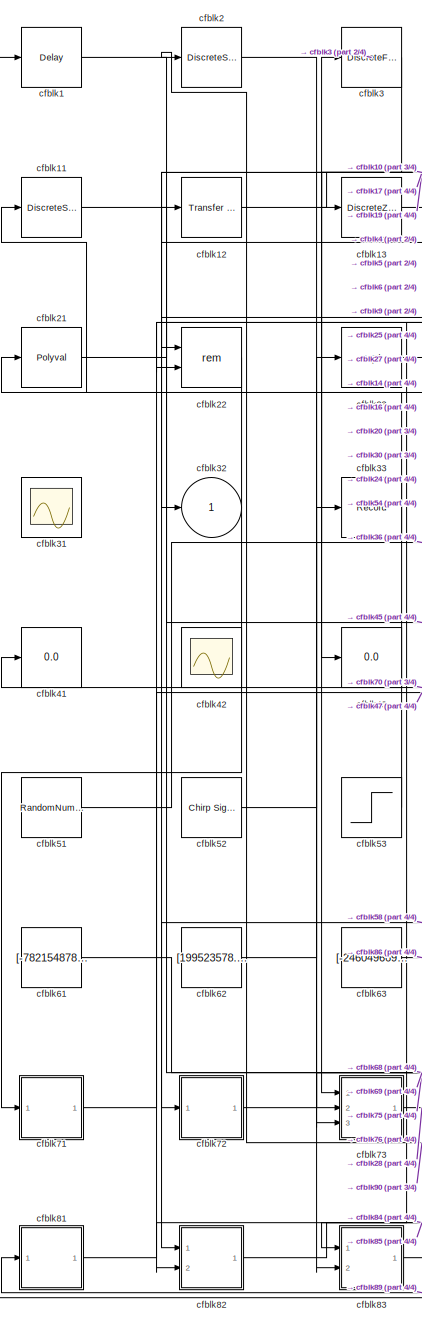
[diagram: root canvas - part 1/4, left side, full height]
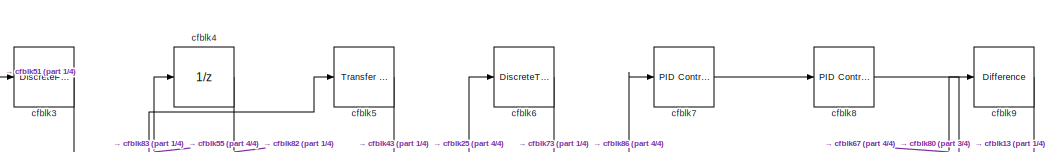
[diagram: root canvas - part 2/4, top center region]
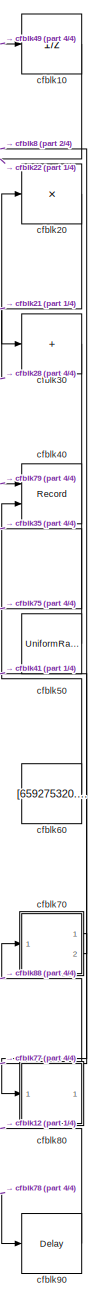
[diagram: root canvas - part 3/4, right side, full height]
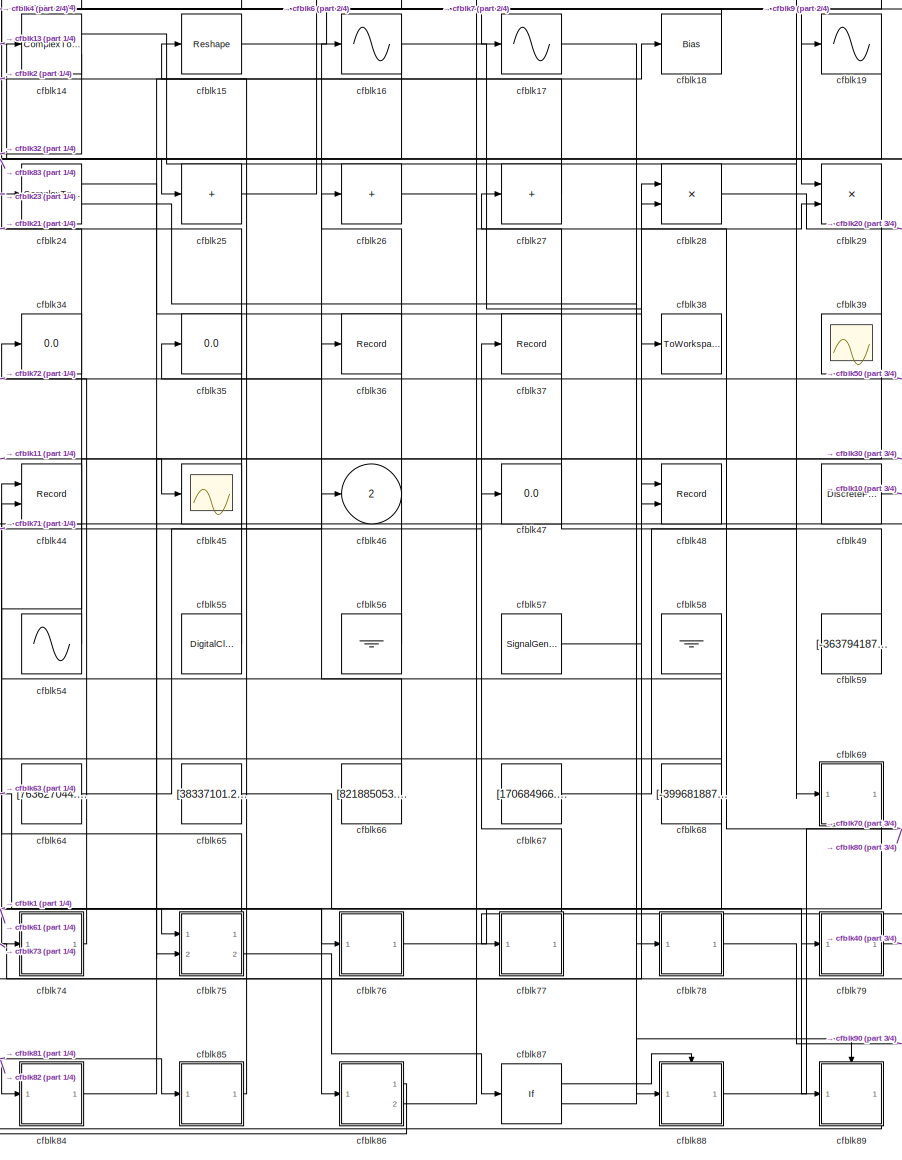
[diagram: root canvas - part 4/4, center side, full height]
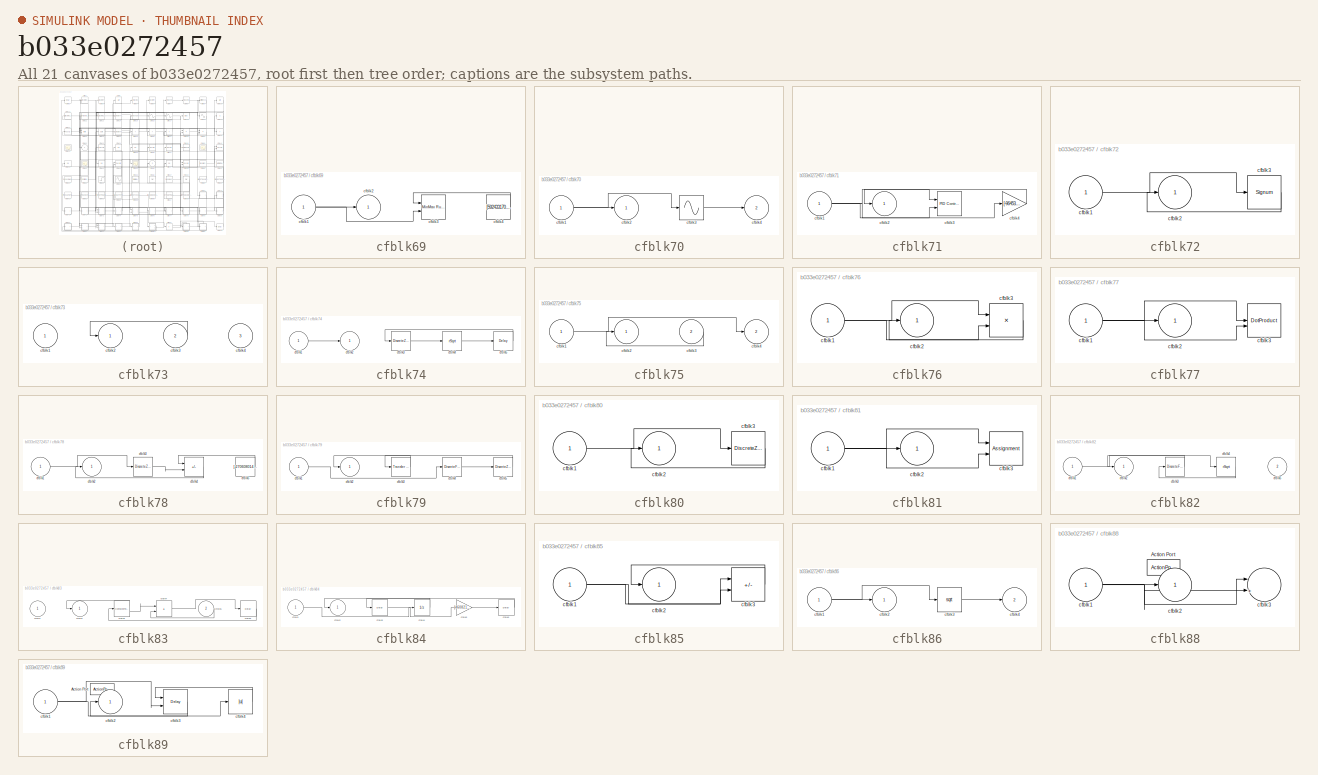
[diagram: thumbnail index - all 21 canvases of the model, root first then tree order]
MODEL slx_b033e0272457
KIND model
CONFIG AbsTol = auto
CONFIG EnableMultiTasking = off
CONFIG FixedStep = auto
CONFIG MaxStep = auto
CONFIG MinStep = auto
CONFIG RelTol = 1e-3
CONFIG SampleTimeConstraint = Unconstrained
CONFIG SolverName = VariableStepAuto
CONFIG StartTime = 0.0
CONFIG StopTime = 10.0
BLOCK [Delay] cfblk1
  InputPortMap = u0
  Ports = [1, 1]
  SampleTime = 1
BLOCK [UnitDelay] cfblk10
  HasFrameUpgradeWarning = on
BLOCK [DiscreteStateSpace] cfblk11
BLOCK [Reference] cfblk12  REF=simulink/Discrete/Transfer Fcn
First Order
  Ports = [1, 1]
  SourceBlock = simulink/Discrete/Transfer Fcn\nFirst Order
  SourceProductBaseCode = SL
  SourceType = First Order Transfer Fcn
BLOCK [DiscreteZeroPole] cfblk13
  Gain = 1
  Poles = [0 0.5]
BLOCK [ComplexToRealImag] cfblk14
  Ports = [1, 2]
BLOCK [Reshape] cfblk15
  Ports = [1, 1]
BLOCK [Sin] cfblk16
  Ports = [1, 1]
  SampleTime = 0
  TimeSource = Use external signal
BLOCK [Sin] cfblk17
  Ports = [1, 1]
  SampleTime = 0
  TimeSource = Use external signal
BLOCK [Bias] cfblk18
  Bias = [845461795.015227]
  SaturateOnIntegerOverflow = off
BLOCK [Sin] cfblk19
  Ports = [1, 1]
  SampleTime = 0
  TimeSource = Use external signal
BLOCK [DiscreteStateSpace] cfblk2
BLOCK [Product] cfblk20
  Inputs = *
  Ports = [1, 1]
BLOCK [Polyval] cfblk21
  Coefs = [ +2.081618890e-019, -1.441693666e-014, +4.719686976e-010, -8.536869453e-006, +1.621573104e-001, -8.087801117e+001 ]
BLOCK [Math] cfblk22
  Operator = rem
  Ports = [2, 1]
BLOCK [Sqrt] cfblk23
BLOCK [ComplexToRealImag] cfblk24
  Ports = [1, 2]
BLOCK [Sum] cfblk25
  IconShape = rectangular
  Inputs = +
  Ports = [1, 1]
BLOCK [Sum] cfblk26
  IconShape = rectangular
  Inputs = +
  Ports = [1, 1]
BLOCK [Sum] cfblk27
  IconShape = rectangular
  Inputs = +
  Ports = [1, 1]
BLOCK [Product] cfblk28
  Inputs = **
  Ports = [2, 1]
BLOCK [Product] cfblk29
  Ports = [2, 1]
BLOCK [DiscreteFilter] cfblk3
  InputPortMap = u0
  Ports = [1, 1]
  SampleTime = 1
BLOCK [Sum] cfblk30
  IconShape = rectangular
  Inputs = +
  Ports = [1, 1]
BLOCK [Scope] cfblk31
  Floating = on
  NumInputPorts = 1
  Ports = []
BLOCK [Outport] cfblk32
BLOCK [Record] cfblk33
  FileSettingsInternal = {"entries":[{"content":{"excelSettings":{"content":{},"type":"Streamout.ExcelSettings"}},"type":"Streamout.FileSettingStorage","uuid":"4614327e-6d68-453b-8b22-e360a787c784"}],"packageUris":["http://schema.mathworks.com/mf0/streamout_blocks/R2020a"],"version":"1.0"}
  Ports = [1]
  SignalsInternal = {"entries":[{"content":{"signals":[{"content":{"blockPath":["sampleModel204/cfblk33"],"channel":[],"dimensions":[1],"domain":"sampleModel204/cfblk33","lineColor":"#d95319","plots":[1],"port":1,"sid":[""],"signalID":7830,"signalName":"cfblk62"},"type":"RecordBlkView.Signal","uuid":"73eefb64-9ff5-4529-8fa5-b9cf3d236068"}]},"type":"RecordBlkView.InputSignals","uuid":"d034e69d-cb16-4f24-b8c5-1be1b0cbd...<+97ch>
  VisualizationBindings = {"sparklinesplugin":{"info":[{"bindingParametersList":[],"subplotID":1}]}}
BLOCK [Display] cfblk34
  Decimation = 1
  Ports = [1]
BLOCK [Display] cfblk35
  Decimation = 1
  Ports = [1]
BLOCK [Record] cfblk36
  FileSettingsInternal = {"entries":[{"content":{"excelSettings":{"content":{},"type":"Streamout.ExcelSettings"}},"type":"Streamout.FileSettingStorage","uuid":"273fffbf-c1de-4c74-a5f9-b15d57392e10"}],"packageUris":["http://schema.mathworks.com/mf0/streamout_blocks/R2020a"],"version":"1.0"}
  Ports = [1]
  SignalsInternal = {"entries":[{"content":{"signals":[{"content":{"blockPath":["sampleModel204/cfblk36"],"channel":[],"dimensions":[1],"domain":"sampleModel204/cfblk36","lineColor":"#77ac30","plots":[1],"port":1,"sid":[""],"signalID":7842,"signalName":"cfblk72"},"type":"RecordBlkView.Signal","uuid":"099157b1-13d5-4ecc-8a56-fe1fbab54c4c"}]},"type":"RecordBlkView.InputSignals","uuid":"1c521255-1461-4086-a910-e84576cd6...<+97ch>
  VisualizationBindings = {"sparklinesplugin":{"info":[{"bindingParametersList":[],"subplotID":1}]}}
BLOCK [Record] cfblk37
  FileSettingsInternal = {"entries":[{"content":{"excelSettings":{"content":{},"type":"Streamout.ExcelSettings"}},"type":"Streamout.FileSettingStorage","uuid":"e99169b0-8bbd-4adc-bc89-6a821c2eb76f"}],"packageUris":["http://schema.mathworks.com/mf0/streamout_blocks/R2020a"],"version":"1.0"}
  Ports = [1]
  SignalsInternal = {"entries":[{"content":{"signals":[{"content":{"blockPath":["sampleModel204/cfblk37"],"channel":[],"dimensions":[1],"domain":"sampleModel204/cfblk37","lineColor":"#b746ff","plots":[1],"port":1,"sid":[""],"signalID":7806,"signalName":"cfblk77"},"type":"RecordBlkView.Signal","uuid":"b58d8220-4f6b-40a0-8985-ec7f20b7d218"}]},"type":"RecordBlkView.InputSignals","uuid":"e264d71b-3544-4864-a4c8-23cd5ab33...<+97ch>
  VisualizationBindings = {"sparklinesplugin":{"info":[{"bindingParametersList":[],"subplotID":1}]}}
BLOCK [ToWorkspace] cfblk38
  FixptAsFi = on
  MaxDataPoints = inf
  Ports = [1]
  SampleTime = -1
  SaveFormat = Timeseries
  VariableName = zlrueyg
BLOCK [Scope] cfblk39
  Floating = on
  NumInputPorts = 1
  Ports = []
BLOCK [UnitDelay] cfblk4
  HasFrameUpgradeWarning = on
BLOCK [Record] cfblk40
  CompatibilityTag = XY
  FileSettingsInternal = {"entries":[{"content":{"excelSettings":{"content":{},"type":"Streamout.ExcelSettings"}},"type":"Streamout.FileSettingStorage","uuid":"cbd2d082-06ee-47d5-bd8d-4f1c9f04a451"}],"packageUris":["http://schema.mathworks.com/mf0/streamout_blocks/R2020a"],"version":"1.0"}
  Layout = [1 1]
  Ports = [2]
  SignalsInternal = {"entries":[{"content":{"signals":[{"content":{"blockPath":["sampleModel204/cfblk40"],"channel":[],"dimensions":[1],"domain":"sampleModel204/cfblk40","lineColor":"#a2142f","plots":[1],"port":1,"sid":[""],"signalID":7834,"signalName":"cfblk79"},"type":"RecordBlkView.Signal","uuid":"3b1cfed9-1420-47cd-881b-1f195950825b"},{"content":{"blockPath":["sampleModel204/cfblk40"],"channel":[],"dimensions":[1...<+383ch>
  VisualizationBindings = {"xyplotplugin":{"info":[{"series":[{"bindingParametersList":[{"parameter":"X-Axis","signalID":7834,"signalName":"cfblk79"},{"parameter":"Y-Axis","signalID":7838,"signalName":"cfblk60"}],"seriesID":54602}],"subplotID":1}]}}
BLOCK [Display] cfblk41
  Decimation = 1
  Ports = [1]
BLOCK [Scope] cfblk42
  Floating = on
  NumInputPorts = 1
  Ports = []
BLOCK [Display] cfblk43
  Decimation = 1
  Ports = [1]
BLOCK [Record] cfblk44
  CompatibilityTag = XY
  FileSettingsInternal = {"entries":[{"content":{"excelSettings":{"content":{},"type":"Streamout.ExcelSettings"}},"type":"Streamout.FileSettingStorage","uuid":"00e44288-5fa3-4b54-8d93-aeff6a4aa51a"}],"packageUris":["http://schema.mathworks.com/mf0/streamout_blocks/R2020a"],"version":"1.0"}
  Layout = [1 1]
  Ports = [2]
  SignalsInternal = {"entries":[{"content":{"signals":[{"content":{"blockPath":["sampleModel204/cfblk44"],"channel":[],"dimensions":[1],"domain":"sampleModel204/cfblk44","lineColor":"#a2142f","plots":[1],"port":1,"sid":[""],"signalID":7810,"signalName":"cfblk75:1"},"type":"RecordBlkView.Signal","uuid":"d7162e4a-4f86-4723-8ae1-6ffcbfc36c1b"},{"content":{"blockPath":["sampleModel204/cfblk44"],"channel":[],"dimensions":...<+385ch>
  VisualizationBindings = {"xyplotplugin":{"info":[{"series":[{"bindingParametersList":[{"parameter":"X-Axis","signalID":7810,"signalName":"cfblk75:1"},{"parameter":"Y-Axis","signalID":7814,"signalName":"cfblk68"}],"seriesID":60804}],"subplotID":1}]}}
BLOCK [Scope] cfblk45
  Floating = off
  NumInputPorts = 1
  Ports = [1]
BLOCK [Outport] cfblk46
  Port = 2
BLOCK [Display] cfblk47
  Decimation = 1
  Ports = [1]
BLOCK [Record] cfblk48
  CompatibilityTag = XY
  FileSettingsInternal = {"entries":[{"content":{"excelSettings":{"content":{},"type":"Streamout.ExcelSettings"}},"type":"Streamout.FileSettingStorage","uuid":"2edb4c00-d95e-48a7-8cef-8a4f1b586e17"}],"packageUris":["http://schema.mathworks.com/mf0/streamout_blocks/R2020a"],"version":"1.0"}
  Layout = [1 1]
  Ports = [2]
  SignalsInternal = {"entries":[{"content":{"signals":[{"content":{"blockPath":["sampleModel204/cfblk48"],"channel":[],"dimensions":[1],"domain":"sampleModel204/cfblk48","lineColor":"#a2142f","plots":[1],"port":1,"sid":[""],"signalID":7818,"signalName":"cfblk16"},"type":"RecordBlkView.Signal","uuid":"7f00db83-bb6a-45eb-ae87-3391caf7e80c"},{"content":{"blockPath":["sampleModel204/cfblk48"],"channel":[],"dimensions":[1...<+383ch>
  VisualizationBindings = {"xyplotplugin":{"info":[{"series":[{"bindingParametersList":[{"parameter":"X-Axis","signalID":7818,"signalName":"cfblk16"},{"parameter":"Y-Axis","signalID":7822,"signalName":"cfblk57"}],"seriesID":5655}],"subplotID":1}]}}
BLOCK [DiscretePulseGenerator] cfblk49
  Amplitude = [-519499388.720965]
  Period = [94571993.588733]
  PhaseDelay = [2.000000]
  Ports = [0, 1]
  PulseType = Time based
  PulseWidth = 5
BLOCK [Reference] cfblk5  REF=simulink/Discrete/Transfer Fcn
Lead or Lag
  Ports = [1, 1]
  SourceBlock = simulink/Discrete/Transfer Fcn\nLead or Lag
  SourceProductBaseCode = SL
  SourceType = Lead or Lag Compensator
BLOCK [UniformRandomNumber] cfblk50
  Maximum = [3900943533.196655]
  Minimum = [-8292247236.991416]
  SampleTime = 0.1
  Seed = [55618585.000000]
BLOCK [RandomNumber] cfblk51
  Mean = [79889.380075]
  SampleTime = 0.1
  Seed = [592125441.000000]
  Variance = [28207.649343]
BLOCK [Reference] cfblk52  REF=simulink/Sources/Chirp Signal
  Ports = [0, 1]
  SourceBlock = simulink/Sources/Chirp Signal
  SourceProductBaseCode = SL
  SourceType = chirp
BLOCK [Step] cfblk53
  After = [622894084.092801]
  Before = [565151935.973644]
  SampleTime = 0
  Time = [4.000000]
BLOCK [Sin] cfblk54
  Amplitude = [555177665.867173]
  Bias = [-790741266.615498]
  Ports = [0, 1]
  SampleTime = 0
BLOCK [DigitalClock] cfblk55
BLOCK [Ground] cfblk56
BLOCK [SignalGenerator] cfblk57
  Amplitude = [824030716.043719]
  Ports = [0, 1]
BLOCK [Ground] cfblk58
BLOCK [Constant] cfblk59
  SampleTime = 1
  Value = [-363794187.541583]
BLOCK [DiscreteTransferFcn] cfblk6
  InputPortMap = u0
  Ports = [1, 1]
  SampleTime = 1
BLOCK [Constant] cfblk60
  SampleTime = 1
  Value = [659275320.174151]
BLOCK [Constant] cfblk61
  SampleTime = 1
  Value = [-782154878.716757]
BLOCK [Constant] cfblk62
  SampleTime = 1
  Value = [199523578.615818]
BLOCK [Constant] cfblk63
  SampleTime = 1
  Value = [-246049669.144012]
BLOCK [Constant] cfblk64
  SampleTime = 1
  Value = [763627044.213252]
BLOCK [Constant] cfblk65
  SampleTime = 1
  Value = [38337101.296954]
BLOCK [Constant] cfblk66
  SampleTime = 1
  Value = [821885053.109942]
BLOCK [Constant] cfblk67
  SampleTime = 1
  Value = [170684966.366622]
BLOCK [Constant] cfblk68
  SampleTime = 1
  Value = [-399681887.981748]
BLOCK [SubSystem] cfblk69
  Ports = [1, 1]
  RequestExecContextInheritance = off
BLOCK [Inport] cfblk69/cfblk1
BLOCK [Outport] cfblk69/cfblk2
BLOCK [Reference] cfblk69/cfblk3  REF=simulink/Math
Operations/MinMax
Running
Resettable
  Ports = [2, 1]
  SourceBlock = simulink/Math\nOperations/MinMax\nRunning\nResettable
  SourceProductBaseCode = SL
  SourceType = MinMax Running Resettable
BLOCK [Constant] cfblk69/cfblk4
  SampleTime = 1
  Value = [592433170.448358]
BLOCK [Reference] cfblk7  REF=slpidlib/PID Controller
  Ports = [1, 1]
  SourceBlock = slpidlib/PID Controller
  SourceProductBaseCode = SL
  SourceType = PID 1dof
BLOCK [SubSystem] cfblk70
  Ports = [1, 2]
  RequestExecContextInheritance = off
BLOCK [Inport] cfblk70/cfblk1
BLOCK [Outport] cfblk70/cfblk2
BLOCK [Sin] cfblk70/cfblk3
  Ports = [1, 1]
  SampleTime = 0
  TimeSource = Use external signal
BLOCK [Outport] cfblk70/cfblk4
  Port = 2
BLOCK [SubSystem] cfblk71
  Ports = [1, 1]
  RequestExecContextInheritance = off
BLOCK [Inport] cfblk71/cfblk1
BLOCK [Outport] cfblk71/cfblk2
BLOCK [Reference] cfblk71/cfblk3  REF=slpidlib/PID Controller (2DOF)
  Ports = [2, 1]
  SourceBlock = slpidlib/PID Controller (2DOF)
  SourceProductBaseCode = SL
  SourceType = PID 2dof
BLOCK [Gain] cfblk71/cfblk4
  Gain = [-964530330.265519]
BLOCK [SubSystem] cfblk72
  Ports = [1, 1]
  RequestExecContextInheritance = off
BLOCK [Inport] cfblk72/cfblk1
BLOCK [Outport] cfblk72/cfblk2
BLOCK [Signum] cfblk72/cfblk3
BLOCK [SubSystem] cfblk73
  Ports = [3, 1]
  RequestExecContextInheritance = off
BLOCK [Inport] cfblk73/cfblk1
BLOCK [Outport] cfblk73/cfblk2
BLOCK [Inport] cfblk73/cfblk3
  Port = 2
BLOCK [Inport] cfblk73/cfblk4
  Port = 3
BLOCK [SubSystem] cfblk74
  Ports = [1, 1]
  RequestExecContextInheritance = off
BLOCK [Inport] cfblk74/cfblk1
BLOCK [Outport] cfblk74/cfblk2
BLOCK [DiscreteZeroPole] cfblk74/cfblk3
  Gain = 1
  Poles = [0 0.5]
BLOCK [Sqrt] cfblk74/cfblk4
  AlgorithmType = Newton-Raphson
  Operator = rSqrt
BLOCK [Delay] cfblk74/cfblk5
  InputPortMap = u0
  Ports = [1, 1]
  SampleTime = 1
BLOCK [SubSystem] cfblk75
  Ports = [2, 2]
  RequestExecContextInheritance = off
BLOCK [Inport] cfblk75/cfblk1
BLOCK [Outport] cfblk75/cfblk2
BLOCK [Inport] cfblk75/cfblk3
  Port = 2
BLOCK [Outport] cfblk75/cfblk4
  Port = 2
BLOCK [SubSystem] cfblk76
  Ports = [1, 1]
  RequestExecContextInheritance = off
BLOCK [Inport] cfblk76/cfblk1
BLOCK [Outport] cfblk76/cfblk2
BLOCK [Product] cfblk76/cfblk3
  Inputs = **
  Ports = [2, 1]
BLOCK [SubSystem] cfblk77
  Ports = [1, 1]
  RequestExecContextInheritance = off
BLOCK [Inport] cfblk77/cfblk1
BLOCK [Outport] cfblk77/cfblk2
BLOCK [DotProduct] cfblk77/cfblk3
  OutDataTypeStr = Inherit: Inherit via internal rule
BLOCK [SubSystem] cfblk78
  Ports = [1, 1]
  RequestExecContextInheritance = off
BLOCK [Inport] cfblk78/cfblk1
BLOCK [Outport] cfblk78/cfblk2
BLOCK [DiscreteZeroPole] cfblk78/cfblk3
  Gain = 1
  Poles = [0 0.5]
BLOCK [Sum] cfblk78/cfblk4
  IconShape = rectangular
  Inputs = --
  Ports = [2, 1]
BLOCK [Constant] cfblk78/cfblk5
  SampleTime = 1
  Value = [-270608014.729998]
BLOCK [SubSystem] cfblk79
  Ports = [1, 1]
  RequestExecContextInheritance = off
BLOCK [Inport] cfblk79/cfblk1
BLOCK [Outport] cfblk79/cfblk2
BLOCK [Reference] cfblk79/cfblk3  REF=simulink/Discrete/Transfer Fcn
Lead or Lag
  Ports = [1, 1]
  SourceBlock = simulink/Discrete/Transfer Fcn\nLead or Lag
  SourceProductBaseCode = SL
  SourceType = Lead or Lag Compensator
BLOCK [DiscreteFir] cfblk79/cfblk4
  InputPortMap = u0
  OutputPortMap = o0
  Ports = [1, 1]
  SampleTime = 1
BLOCK [DiscreteZeroPole] cfblk79/cfblk5
  Gain = 1
  Poles = [0 0.5]
BLOCK [Reference] cfblk8  REF=slpidlib/PID Controller
  Ports = [1, 1]
  SourceBlock = slpidlib/PID Controller
  SourceProductBaseCode = SL
  SourceType = PID 1dof
BLOCK [SubSystem] cfblk80
  Ports = [1, 1]
  RequestExecContextInheritance = off
BLOCK [Inport] cfblk80/cfblk1
BLOCK [Outport] cfblk80/cfblk2
BLOCK [DiscreteZeroPole] cfblk80/cfblk3
  Gain = 1
  Poles = [0 0.5]
BLOCK [SubSystem] cfblk81
  Ports = [1, 1]
  RequestExecContextInheritance = off
BLOCK [Inport] cfblk81/cfblk1
BLOCK [Outport] cfblk81/cfblk2
BLOCK [Assignment] cfblk81/cfblk3
  DiagnosticForDimensions = Warning
  IndexOptions = Index vector (dialog)
  Indices = 1
  OutputSizes = 1
  Ports = [2, 1]
BLOCK [SubSystem] cfblk82
  Ports = [2, 1]
  RequestExecContextInheritance = off
BLOCK [Inport] cfblk82/cfblk1
BLOCK [Outport] cfblk82/cfblk2
BLOCK [DiscreteFilter] cfblk82/cfblk3
  InputPortMap = u0
  Ports = [1, 1]
  SampleTime = 1
BLOCK [Sqrt] cfblk82/cfblk4
  AlgorithmType = Newton-Raphson
  Operator = rSqrt
BLOCK [Inport] cfblk82/cfblk5
  Port = 2
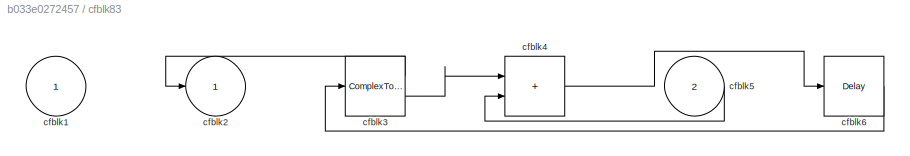
BLOCK [SubSystem] cfblk83
  Ports = [2, 1]
  RequestExecContextInheritance = off
BLOCK [Inport] cfblk83/cfblk1
BLOCK [Outport] cfblk83/cfblk2
BLOCK [ComplexToMagnitudeAngle] cfblk83/cfblk3
  Ports = [1, 2]
BLOCK [Sum] cfblk83/cfblk4
  IconShape = rectangular
  Ports = [2, 1]
BLOCK [Inport] cfblk83/cfblk5
  Port = 2
BLOCK [Delay] cfblk83/cfblk6
  InputPortMap = u0
  Ports = [1, 1]
  SampleTime = 1
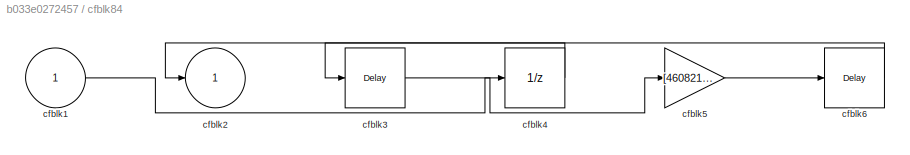
BLOCK [SubSystem] cfblk84
  Ports = [1, 1]
  RequestExecContextInheritance = off
BLOCK [Inport] cfblk84/cfblk1
BLOCK [Outport] cfblk84/cfblk2
BLOCK [Delay] cfblk84/cfblk3
  InputPortMap = u0
  Ports = [1, 1]
  SampleTime = 1
BLOCK [UnitDelay] cfblk84/cfblk4
  HasFrameUpgradeWarning = on
BLOCK [Gain] cfblk84/cfblk5
  Gain = [460821207.674244]
BLOCK [Delay] cfblk84/cfblk6
  InputPortMap = u0
  Ports = [1, 1]
  SampleTime = 1
BLOCK [SubSystem] cfblk85
  Ports = [1, 1]
  RequestExecContextInheritance = off
BLOCK [Inport] cfblk85/cfblk1
BLOCK [Outport] cfblk85/cfblk2
BLOCK [Sum] cfblk85/cfblk3
  IconShape = rectangular
  Inputs = -+
  Ports = [2, 1]
BLOCK [SubSystem] cfblk86
  Ports = [1, 2]
  RequestExecContextInheritance = off
BLOCK [Inport] cfblk86/cfblk1
BLOCK [Outport] cfblk86/cfblk2
BLOCK [Sqrt] cfblk86/cfblk3
BLOCK [Outport] cfblk86/cfblk4
  Port = 2
BLOCK [If] cfblk87
  IfExpression = u1 >= 0
  Ports = [1, 2]
  SampleTime = 1
BLOCK [SubSystem] cfblk88
  Ports = [1, 1, 0, 0, 0, 0, 0, 1]
  RequestExecContextInheritance = off
  TreatAsAtomicUnit = on
BLOCK [ActionPort] cfblk88/Action Port
  ActionPortLabel = if(u1 >= 0)
BLOCK [Inport] cfblk88/cfblk1
BLOCK [Outport] cfblk88/cfblk2
BLOCK [Sum] cfblk88/cfblk3
  Inputs = |++
  Ports = [2, 1]
BLOCK [SubSystem] cfblk89
  Ports = [1, 1, 0, 0, 0, 0, 0, 1]
  RequestExecContextInheritance = off
  TreatAsAtomicUnit = on
BLOCK [ActionPort] cfblk89/Action Port
  ActionPortLabel = else
BLOCK [Inport] cfblk89/cfblk1
BLOCK [Outport] cfblk89/cfblk2
BLOCK [Delay] cfblk89/cfblk3
  InputPortMap = u0,e6
  Ports = [2, 1]
  ShowEnablePort = on
BLOCK [Abs] cfblk89/cfblk4
  SaturateOnIntegerOverflow = off
BLOCK [Reference] cfblk9  REF=simulink/Discrete/Difference
  Ports = [1, 1]
  SourceBlock = simulink/Discrete/Difference
  SourceProductBaseCode = SL
  SourceType = Difference
BLOCK [Delay] cfblk90
  InputPortMap = u0
  Ports = [1, 1]
  SampleTime = 1
LINE cfblk10:1 -> cfblk22:1
LINE cfblk11:1 -> cfblk45:1
LINE cfblk12:1 -> cfblk17:1
LINE cfblk13:1 -> cfblk25:1
LINE cfblk14:1 -> cfblk69:1
LINE cfblk14:2 -> cfblk32:1
LINE cfblk15:1 -> cfblk29:1
NET cfblk16:1 -> cfblk48:1, cfblk83:1
LINE cfblk17:1 -> cfblk78:1
LINE cfblk18:1 -> cfblk14:1
LINE cfblk19:1 -> cfblk82:2
LINE cfblk1:1 -> cfblk75:1
LINE cfblk20:1 -> cfblk22:2
LINE cfblk21:1 -> cfblk30:1
LINE cfblk22:1 -> cfblk71:1
LINE cfblk23:1 -> cfblk24:1
LINE cfblk24:1 -> cfblk38:1
LINE cfblk24:2 -> cfblk88:1
LINE cfblk25:1 -> cfblk6:1
LINE cfblk26:1 -> cfblk29:2
LINE cfblk27:1 -> cfblk2:1
LINE cfblk28:1 -> cfblk20:1
LINE cfblk29:1 -> cfblk74:1
LINE cfblk2:1 -> cfblk19:1
LINE cfblk30:1 -> cfblk75:2
LINE cfblk3:1 -> cfblk73:2
LINE cfblk49:1 -> cfblk10:1
LINE cfblk4:1 -> cfblk82:1
LINE cfblk50:1 -> cfblk35:1
LINE cfblk51:1 -> cfblk3:1
LINE cfblk52:1 -> cfblk23:1
LINE cfblk53:1 -> cfblk11:1
LINE cfblk54:1 -> cfblk21:1
LINE cfblk55:1 -> cfblk4:1
LINE cfblk56:1 -> cfblk26:1
LINE cfblk57:1 -> cfblk48:2
LINE cfblk58:1 -> cfblk72:1
LINE cfblk59:1 -> cfblk27:1
LINE cfblk5:1 -> cfblk43:1
LINE cfblk60:1 -> cfblk40:2
LINE cfblk61:1 -> cfblk76:1
LINE cfblk62:1 -> cfblk33:1
LINE cfblk63:1 -> cfblk86:1
LINE cfblk64:1 -> cfblk46:1
LINE cfblk65:1 -> cfblk89:1
LINE cfblk66:1 -> cfblk16:1
LINE cfblk67:1 -> cfblk9:1
NET cfblk68:1 -> cfblk44:2, cfblk83:2
NET cfblk69/cfblk1:1 -> cfblk69/cfblk2:1, cfblk69/cfblk3:2
LINE cfblk69/cfblk4:1 -> cfblk69/cfblk3:1
LINE cfblk69:1 -> cfblk73:3
LINE cfblk6:1 -> cfblk73:1
NET cfblk70/cfblk1:1 -> cfblk70/cfblk2:1, cfblk70/cfblk3:1
LINE cfblk70/cfblk3:1 -> cfblk70/cfblk4:1
LINE cfblk70:1 -> cfblk77:1
LINE cfblk70:2 -> cfblk41:1
NET cfblk71/cfblk1:1 -> cfblk71/cfblk3:1, cfblk71/cfblk3:2, cfblk71/cfblk4:1
LINE cfblk71/cfblk4:1 -> cfblk71/cfblk2:1
LINE cfblk71:1 -> cfblk47:1
LINE cfblk72/cfblk1:1 -> cfblk72/cfblk3:1
LINE cfblk72/cfblk3:1 -> cfblk72/cfblk2:1
LINE cfblk72:1 -> cfblk36:1
LINE cfblk73/cfblk3:1 -> cfblk73/cfblk2:1
LINE cfblk73:1 -> cfblk28:1
LINE cfblk74/cfblk1:1 -> cfblk74/cfblk2:1
LINE cfblk74/cfblk3:1 -> cfblk74/cfblk4:1
LINE cfblk74/cfblk4:1 -> cfblk74/cfblk5:1
LINE cfblk74/cfblk5:1 -> cfblk74/cfblk3:1
LINE cfblk74:1 -> cfblk34:1
LINE cfblk75/cfblk1:1 -> cfblk75/cfblk4:1
LINE cfblk75/cfblk3:1 -> cfblk75/cfblk2:1
LINE cfblk75:1 -> cfblk44:1
LINE cfblk75:2 -> cfblk87:1
NET cfblk76/cfblk1:1 -> cfblk76/cfblk3:1, cfblk76/cfblk3:2
LINE cfblk76/cfblk3:1 -> cfblk76/cfblk2:1
LINE cfblk76:1 -> cfblk79:1
NET cfblk77/cfblk1:1 -> cfblk77/cfblk2:1, cfblk77/cfblk3:1, cfblk77/cfblk3:2
LINE cfblk77:1 -> cfblk37:1
LINE cfblk78/cfblk1:1 -> cfblk78/cfblk3:1
LINE cfblk78/cfblk3:1 -> cfblk78/cfblk4:2
LINE cfblk78/cfblk4:1 -> cfblk78/cfblk2:1
LINE cfblk78/cfblk5:1 -> cfblk78/cfblk4:1
LINE cfblk78:1 -> cfblk90:1
LINE cfblk79/cfblk1:1 -> cfblk79/cfblk4:1
LINE cfblk79/cfblk3:1 -> cfblk79/cfblk2:1
LINE cfblk79/cfblk4:1 -> cfblk79/cfblk5:1
LINE cfblk79/cfblk5:1 -> cfblk79/cfblk3:1
LINE cfblk79:1 -> cfblk40:1
LINE cfblk7:1 -> cfblk8:1
LINE cfblk80/cfblk1:1 -> cfblk80/cfblk3:1
LINE cfblk80/cfblk3:1 -> cfblk80/cfblk2:1
LINE cfblk80:1 -> cfblk28:2
NET cfblk81/cfblk1:1 -> cfblk81/cfblk2:1, cfblk81/cfblk3:1, cfblk81/cfblk3:2
LINE cfblk81:1 -> cfblk85:1
LINE cfblk82/cfblk1:1 -> cfblk82/cfblk4:1
LINE cfblk82/cfblk3:1 -> cfblk82/cfblk2:1
LINE cfblk82/cfblk4:1 -> cfblk82/cfblk3:1
LINE cfblk82:1 -> cfblk84:1
LINE cfblk83/cfblk3:1 -> cfblk83/cfblk2:1
LINE cfblk83/cfblk3:2 -> cfblk83/cfblk4:1
LINE cfblk83/cfblk4:1 -> cfblk83/cfblk6:1
LINE cfblk83/cfblk5:1 -> cfblk83/cfblk4:2
LINE cfblk83/cfblk6:1 -> cfblk83/cfblk3:1
LINE cfblk83:1 -> cfblk5:1
LINE cfblk84/cfblk1:1 -> cfblk84/cfblk4:1
LINE cfblk84/cfblk3:1 -> cfblk84/cfblk5:1
LINE cfblk84/cfblk4:1 -> cfblk84/cfblk2:1
LINE cfblk84/cfblk5:1 -> cfblk84/cfblk6:1
LINE cfblk84/cfblk6:1 -> cfblk84/cfblk3:1
LINE cfblk84:1 -> cfblk18:1
NET cfblk85/cfblk1:1 -> cfblk85/cfblk3:1, cfblk85/cfblk3:2
LINE cfblk85/cfblk3:1 -> cfblk85/cfblk2:1
LINE cfblk85:1 -> cfblk15:1
NET cfblk86/cfblk1:1 -> cfblk86/cfblk2:1, cfblk86/cfblk3:1
LINE cfblk86/cfblk3:1 -> cfblk86/cfblk4:1
LINE cfblk86:1 -> cfblk1:1
LINE cfblk86:2 -> cfblk7:1
LINE cfblk87:1 -> cfblk88:ifaction
LINE cfblk87:2 -> cfblk89:ifaction
NET cfblk88/cfblk1:1 -> cfblk88/cfblk2:1, cfblk88/cfblk3:1, cfblk88/cfblk3:2
LINE cfblk88:1 -> cfblk70:1
NET cfblk89/cfblk1:1 -> cfblk89/cfblk3:2, cfblk89/cfblk4:1
LINE cfblk89/cfblk3:1 -> cfblk89/cfblk2:1
LINE cfblk89/cfblk4:1 -> cfblk89/cfblk3:1
LINE cfblk89:1 -> cfblk81:1
LINE cfblk8:1 -> cfblk80:1
LINE cfblk90:1 -> cfblk12:1
LINE cfblk9:1 -> cfblk13:1
note: NET lines group one-source signal fan-out (src -> all destinations, sorted); 1:1 wires keep LINE
